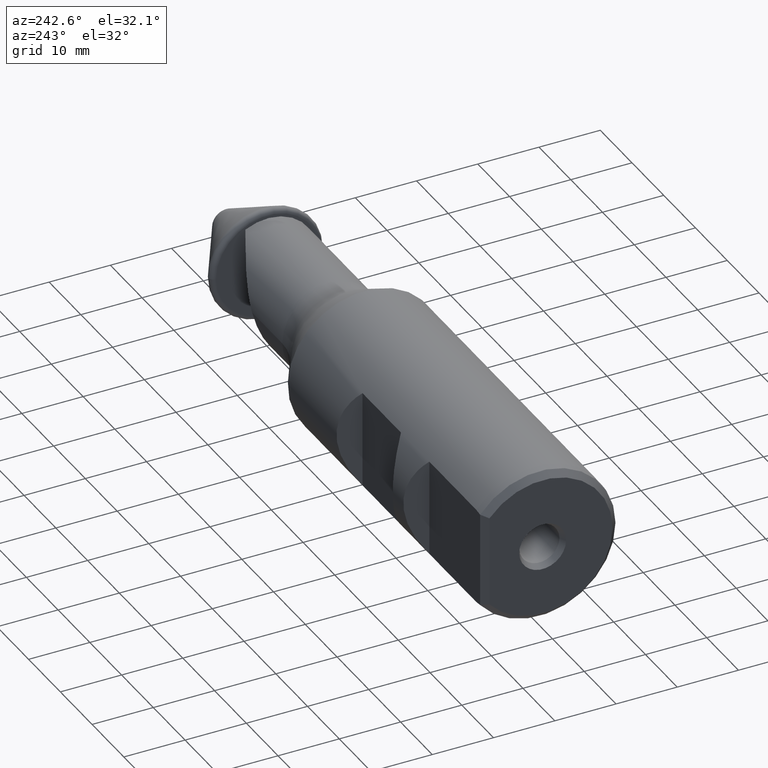
[diagram: clean part render]
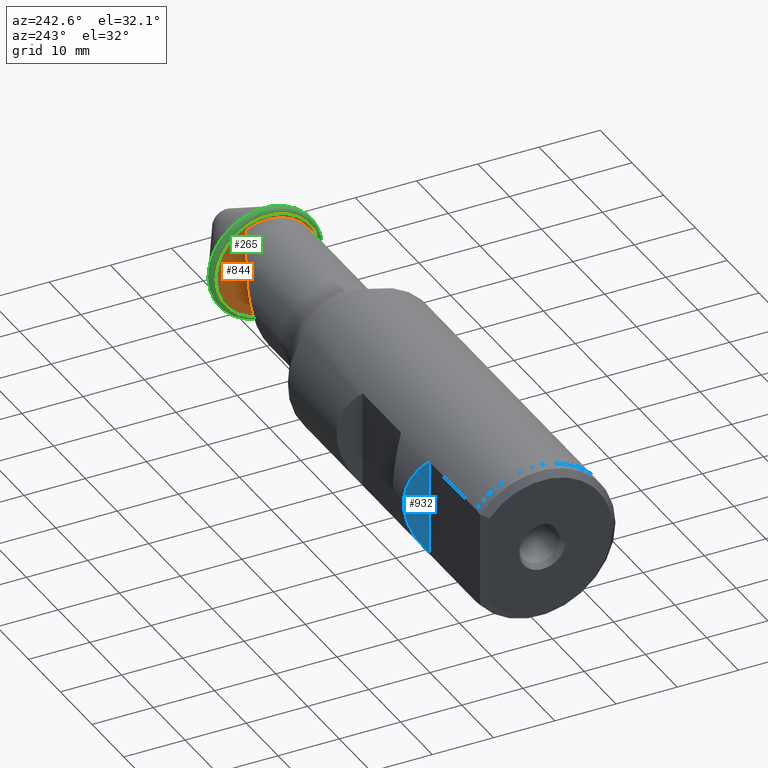
[diagram: same view with three faces highlighted in distinct colors, each labeled with its STEP entity id]
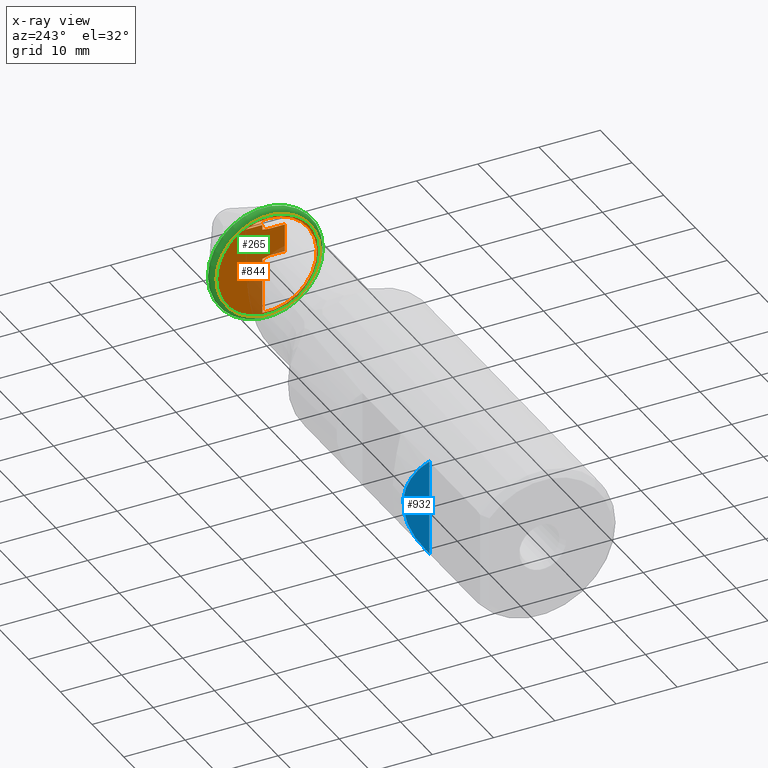
[diagram: x-ray of the same camera — body ghosted, the three highlighted faces saturated]
A machine part, auxiliary view with three faces highlighted in distinct colors.
The next image is the same camera in x-ray (body ghosted, the three faces saturated) — at least one of them is partly hidden behind the body in this view.
Their STEP definitions:

[orange] entity #844 — the highlighted planar face has unit normal (-1, -0, 0).
#12 = EDGE_LOOP ( 'NONE', ( #838 ) ) ;
#23 = EDGE_CURVE ( 'NONE', #689, #689, #156, .T. ) ;
#28 = CARTESIAN_POINT ( 'NONE',  ( -20.32288670554150700, -0.1350000000000016500, 6.141272524781870200 ) ) ;
#41 = VERTEX_POINT ( 'NONE', #28 ) ;
#47 = LINE ( 'NONE', #782, #883 ) ;
#54 = CARTESIAN_POINT ( 'NONE',  ( -20.32288670554150700, 0.3989106830094169600, 0.0000000000000000000 ) ) ;
#92 = ORIENTED_EDGE ( 'NONE', *, *, #1046, .F. ) ;
#94 = FACE_BOUND ( 'NONE', #315, .T. ) ;
#119 = CARTESIAN_POINT ( 'NONE',  ( -20.32288670554150700, -3.658987650883321000E-015, 0.0000000000000000000 ) ) ;
#127 = LINE ( 'NONE', #801, #1038 ) ;
#138 = EDGE_CURVE ( 'NONE', #166, #937, #242, .T. ) ;
#156 = CIRCLE ( 'NONE', #438, 8.479309060397749700 ) ;
#166 = VERTEX_POINT ( 'NONE', #1087 ) ;
#171 = FACE_OUTER_BOUND ( 'NONE', #12, .T. ) ;
#179 = VERTEX_POINT ( 'NONE', #919 ) ;
#218 = DIRECTION ( 'NONE',  ( 0.0000000000000000000, -1.000000000000000000, 0.0000000000000000000 ) ) ;
#235 = AXIS2_PLACEMENT_3D ( 'NONE', #54, #1072, #950 ) ;
#242 = CIRCLE ( 'NONE', #948, 8.000000000000003600 ) ;
#261 = LINE ( 'NONE', #1052, #661 ) ;
#277 = LINE ( 'NONE', #664, #508 ) ;
#285 = VERTEX_POINT ( 'NONE', #1050 ) ;
#286 = DIRECTION ( 'NONE',  ( 1.000000000000000000, 1.223561792411906800E-016, -0.0000000000000000000 ) ) ;
#287 = CARTESIAN_POINT ( 'NONE',  ( -20.32288670554150700, 8.479309060397746100, 0.0000000000000000000 ) ) ;
#290 = PLANE ( 'NONE',  #235 ) ;
#291 = DIRECTION ( 'NONE',  ( -1.223561792411907000E-016, 1.000000000000000000, 2.120187873891359400E-016 ) ) ;
#292 = CARTESIAN_POINT ( 'NONE',  ( -20.32288670554150700, -2.770000000000001800, 1.538418302221392200 ) ) ;
#315 = EDGE_LOOP ( 'NONE', ( #92, #991, #542, #824, #417, #453, #1113, #967, #429 ) ) ;
#373 = LINE ( 'NONE', #292, #845 ) ;
#403 = CARTESIAN_POINT ( 'NONE',  ( -20.32288670554150700, -0.1350000000000016500, 1.538418302221392900 ) ) ;
#404 = CARTESIAN_POINT ( 'NONE',  ( -20.32288670554150700, -2.770000000000001800, 6.141272524781872000 ) ) ;
#407 = B_SPLINE_CURVE_WITH_KNOTS ( 'NONE', 3,
 ( #516, #512, #509, #504 ),
 .UNSPECIFIED., .F., .F.,
 ( 4, 4 ),
 ( 0.004065363294481289800, 0.005111014878211050400 ),
 .UNSPECIFIED. ) ;
#416 = CARTESIAN_POINT ( 'NONE',  ( -20.32288670554150700, 0.8999999999999982500, 6.290407375788320500 ) ) ;
#417 = ORIENTED_EDGE ( 'NONE', *, *, #138, .T. ) ;
#429 = ORIENTED_EDGE ( 'NONE', *, *, #442, .T. ) ;
#437 = DIRECTION ( 'NONE',  ( 0.0000000000000000000, -1.000000000000000000, 0.0000000000000000000 ) ) ;
#438 = AXIS2_PLACEMENT_3D ( 'NONE', #817, #286, #904 ) ;
#442 = EDGE_CURVE ( 'NONE', #179, #285, #127, .T. ) ;
#453 = ORIENTED_EDGE ( 'NONE', *, *, #511, .T. ) ;
#504 = CARTESIAN_POINT ( 'NONE',  ( -20.32288670554150700, 0.8999999999999982500, 6.290407375788320500 ) ) ;
#508 = VECTOR ( 'NONE', #666, 1000.000000000000000 ) ;
#509 = CARTESIAN_POINT ( 'NONE',  ( -20.32288670554150700, 0.5549286646401250200, 6.241202958090901200 ) ) ;
#511 = EDGE_CURVE ( 'NONE', #937, #581, #277, .T. ) ;
#512 = CARTESIAN_POINT ( 'NONE',  ( -20.32288670554150700, 0.2099217332057552200, 6.191527559903185800 ) ) ;
#516 = CARTESIAN_POINT ( 'NONE',  ( -20.32288670554150700, -0.1350000000000016500, 6.141272524781870200 ) ) ;
#517 = CARTESIAN_POINT ( 'NONE',  ( -20.32288670554150700, 0.8999999999999982500, 1.290283785206652900 ) ) ;
#542 = ORIENTED_EDGE ( 'NONE', *, *, #931, .T. ) ;
#551 = CARTESIAN_POINT ( 'NONE',  ( -20.32288670554150700, 0.8999999999999982500, 7.101634922244807400 ) ) ;
#580 = VERTEX_POINT ( 'NONE', #551 ) ;
#581 = VERTEX_POINT ( 'NONE', #517 ) ;
#586 = EDGE_CURVE ( 'NONE', #41, #653, #407, .T. ) ;
#603 = LINE ( 'NONE', #903, #1026 ) ;
#653 = VERTEX_POINT ( 'NONE', #416 ) ;
#661 = VECTOR ( 'NONE', #1028, 1000.000000000000000 ) ;
#664 = CARTESIAN_POINT ( 'NONE',  ( -20.32288670554150700, 0.8999999999999982500, -10.39599999999999900 ) ) ;
#666 = DIRECTION ( 'NONE',  ( 0.0000000000000000000, 0.0000000000000000000, 1.000000000000000000 ) ) ;
#671 = VERTEX_POINT ( 'NONE', #403 ) ;
#689 = VERTEX_POINT ( 'NONE', #287 ) ;
#746 = DIRECTION ( 'NONE',  ( 1.000000000000000000, 1.223561792411906800E-016, -0.0000000000000000000 ) ) ;
#770 = DIRECTION ( 'NONE',  ( 1.189845174192937200E-016, -0.9724438778424857600, 0.2331370936738051700 ) ) ;
#774 = DIRECTION ( 'NONE',  ( 0.0000000000000000000, 0.0000000000000000000, 1.000000000000000000 ) ) ;
#782 = CARTESIAN_POINT ( 'NONE',  ( -20.32288670554150700, -0.06629613637461225000, 1.521946997856433700 ) ) ;
#801 = CARTESIAN_POINT ( 'NONE',  ( -20.32288670554150700, -2.770000000000001800, 4.081000000000000400 ) ) ;
#817 = CARTESIAN_POINT ( 'NONE',  ( -20.32288670554150700, -3.007050927400316000E-015, 0.0000000000000000000 ) ) ;
#824 = ORIENTED_EDGE ( 'NONE', *, *, #877, .T. ) ;
#838 = ORIENTED_EDGE ( 'NONE', *, *, #23, .F. ) ;
#844 = ADVANCED_FACE ( 'NONE', ( #171, #94 ), #290, .T. ) ;
#845 = VECTOR ( 'NONE', #291, 1000.000000000000000 ) ;
#857 = LINE ( 'NONE', #404, #1036 ) ;
#877 = EDGE_CURVE ( 'NONE', #580, #166, #261, .T. ) ;
#883 = VECTOR ( 'NONE', #770, 1000.000000000000000 ) ;
#900 = CARTESIAN_POINT ( 'NONE',  ( -20.32288670554150700, 0.8999999999999971400, -7.949213797602883600 ) ) ;
#903 = CARTESIAN_POINT ( 'NONE',  ( -20.32288670554150700, 0.8999999999999982500, -10.39599999999999900 ) ) ;
#904 = DIRECTION ( 'NONE',  ( 0.0000000000000000000, 1.000000000000000000, 0.0000000000000000000 ) ) ;
#919 = CARTESIAN_POINT ( 'NONE',  ( -20.32288670554150700, -2.770000000000001800, 1.538418302221392600 ) ) ;
#931 = EDGE_CURVE ( 'NONE', #653, #580, #603, .T. ) ;
#937 = VERTEX_POINT ( 'NONE', #900 ) ;
#948 = AXIS2_PLACEMENT_3D ( 'NONE', #119, #746, #218 ) ;
#950 = DIRECTION ( 'NONE',  ( 1.223561792411906800E-016, -1.000000000000000000, 0.0000000000000000000 ) ) ;
#957 = EDGE_CURVE ( 'NONE', #581, #671, #47, .T. ) ;
#959 = DIRECTION ( 'NONE',  ( 0.0000000000000000000, 0.0000000000000000000, 1.000000000000000000 ) ) ;
#967 = ORIENTED_EDGE ( 'NONE', *, *, #1097, .F. ) ;
#991 = ORIENTED_EDGE ( 'NONE', *, *, #586, .T. ) ;
#1026 = VECTOR ( 'NONE', #959, 1000.000000000000000 ) ;
#1028 = DIRECTION ( 'NONE',  ( -0.0000000000000000000, 1.000000000000000000, -0.0000000000000000000 ) ) ;
#1036 = VECTOR ( 'NONE', #437, 1000.000000000000000 ) ;
#1038 = VECTOR ( 'NONE', #774, 1000.000000000000000 ) ;
#1046 = EDGE_CURVE ( 'NONE', #41, #285, #857, .T. ) ;
#1050 = CARTESIAN_POINT ( 'NONE',  ( -20.32288670554150700, -2.770000000000001800, 6.141272524781872000 ) ) ;
#1052 = CARTESIAN_POINT ( 'NONE',  ( -20.32288670554150700, 12.59999999999998900, 7.101634922244807400 ) ) ;
#1072 = DIRECTION ( 'NONE',  ( -1.000000000000000000, -1.223561792411906800E-016, 0.0000000000000000000 ) ) ;
#1087 = CARTESIAN_POINT ( 'NONE',  ( -20.32288670554150700, 3.683311204765778300, 7.101634922244806500 ) ) ;
#1097 = EDGE_CURVE ( 'NONE', #179, #671, #373, .T. ) ;
#1113 = ORIENTED_EDGE ( 'NONE', *, *, #957, .T. ) ;

[blue] entity #932 — the highlighted planar face has unit normal (-0.7071, 0.7071, 0).
#7 = CARTESIAN_POINT ( 'NONE',  ( -86.00282131661441600, 13.59717868338557900, -3.089404912919607500 ) ) ;
#50 = CARTESIAN_POINT ( 'NONE',  ( -89.90000000000000600, 9.699999999999990400, 7.884161337770824400 ) ) ;
#163 = EDGE_CURVE ( 'NONE', #698, #1085, #170, .T. ) ;
#170 =( BOUNDED_CURVE ( )  B_SPLINE_CURVE ( 3, ( #306, #7, #574, #50 ),
 .UNSPECIFIED., .F., .T. ) 
 B_SPLINE_CURVE_WITH_KNOTS ( ( 4, 4 ),
 ( 5.600687989903613100, 6.965682624455559400 ),
 .UNSPECIFIED. ) 
 CURVE ( )  GEOMETRIC_REPRESENTATION_ITEM ( )  RATIONAL_B_SPLINE_CURVE ( ( 1.000000000000000000, 0.8506666666666660200, 0.8506666666666660200, 1.000000000000000000 ) ) 
 REPRESENTATION_ITEM ( '' )  );
#194 = ORIENTED_EDGE ( 'NONE', *, *, #513, .F. ) ;
#306 = CARTESIAN_POINT ( 'NONE',  ( -89.90000000000000600, 9.699999999999990400, -7.884161337770820800 ) ) ;
#342 = ORIENTED_EDGE ( 'NONE', *, *, #163, .F. ) ;
#371 = CARTESIAN_POINT ( 'NONE',  ( -89.90000000000000600, 9.699999999999990400, 7.884161337770824400 ) ) ;
#419 = CARTESIAN_POINT ( 'NONE',  ( -89.90000000000000600, 9.699999999999990400, -7.884161337770820800 ) ) ;
#441 = EDGE_LOOP ( 'NONE', ( #342, #194 ) ) ;
#478 = FACE_OUTER_BOUND ( 'NONE', #441, .T. ) ;
#513 = EDGE_CURVE ( 'NONE', #1085, #698, #742, .T. ) ;
#574 = CARTESIAN_POINT ( 'NONE',  ( -86.00282131661444400, 13.59717868338557900, 3.089404912919605300 ) ) ;
#640 = DIRECTION ( 'NONE',  ( 0.0000000000000000000, 0.0000000000000000000, -1.000000000000000000 ) ) ;
#648 = CARTESIAN_POINT ( 'NONE',  ( -89.90000000000000600, 9.699999999999990400, 10.00000000000000000 ) ) ;
#698 = VERTEX_POINT ( 'NONE', #419 ) ;
#742 = LINE ( 'NONE', #648, #772 ) ;
#772 = VECTOR ( 'NONE', #640, 1000.000000000000000 ) ;
#872 = DIRECTION ( 'NONE',  ( -0.7071067811865458000, -0.7071067811865492400, 0.0000000000000000000 ) ) ;
#874 = DIRECTION ( 'NONE',  ( -0.7071067811865492400, 0.7071067811865458000, 0.0000000000000000000 ) ) ;
#889 = CARTESIAN_POINT ( 'NONE',  ( -87.00000000000002800, 12.59999999999998900, 10.00000000000000000 ) ) ;
#894 = PLANE ( 'NONE',  #983 ) ;
#932 = ADVANCED_FACE ( 'NONE', ( #478 ), #894, .T. ) ;
#983 = AXIS2_PLACEMENT_3D ( 'NONE', #889, #874, #872 ) ;
#1085 = VERTEX_POINT ( 'NONE', #371 ) ;

[green] entity #265 — the highlighted toroidal blend (fillet) surface has major radius 8.4793 mm and minor (blend) radius 0.8 mm.
#23 = EDGE_CURVE ( 'NONE', #689, #689, #156, .T. ) ;
#57 = EDGE_LOOP ( 'NONE', ( #557 ) ) ;
#118 = VERTEX_POINT ( 'NONE', #255 ) ;
#156 = CIRCLE ( 'NONE', #438, 8.479309060397749700 ) ;
#255 = CARTESIAN_POINT ( 'NONE',  ( -19.12288670554151400, 9.172129383425309300, 0.0000000000000000000 ) ) ;
#265 = ADVANCED_FACE ( 'NONE', ( #849, #324 ), #336, .T. ) ;
#286 = DIRECTION ( 'NONE',  ( 1.000000000000000000, 1.223561792411906800E-016, -0.0000000000000000000 ) ) ;
#287 = CARTESIAN_POINT ( 'NONE',  ( -20.32288670554150700, 8.479309060397746100, 0.0000000000000000000 ) ) ;
#324 = FACE_OUTER_BOUND ( 'NONE', #1112, .T. ) ;
#331 = EDGE_CURVE ( 'NONE', #118, #118, #797, .T. ) ;
#336 = TOROIDAL_SURFACE ( 'NONE', #888, 8.479309060397760300, 0.7999999999999986000 ) ;
#438 = AXIS2_PLACEMENT_3D ( 'NONE', #817, #286, #904 ) ;
#557 = ORIENTED_EDGE ( 'NONE', *, *, #23, .T. ) ;
#689 = VERTEX_POINT ( 'NONE', #287 ) ;
#707 = ORIENTED_EDGE ( 'NONE', *, *, #331, .F. ) ;
#797 = CIRCLE ( 'NONE', #834, 9.172129383425312800 ) ;
#817 = CARTESIAN_POINT ( 'NONE',  ( -20.32288670554150700, -3.007050927400316000E-015, 0.0000000000000000000 ) ) ;
#834 = AXIS2_PLACEMENT_3D ( 'NONE', #921, #915, #909 ) ;
#849 = FACE_OUTER_BOUND ( 'NONE', #57, .T. ) ;
#888 = AXIS2_PLACEMENT_3D ( 'NONE', #934, #1108, #1107 ) ;
#904 = DIRECTION ( 'NONE',  ( 0.0000000000000000000, 1.000000000000000000, 0.0000000000000000000 ) ) ;
#909 = DIRECTION ( 'NONE',  ( 0.0000000000000000000, 1.000000000000000000, 0.0000000000000000000 ) ) ;
#915 = DIRECTION ( 'NONE',  ( 1.000000000000000000, 1.223561792411906800E-016, -0.0000000000000000000 ) ) ;
#921 = CARTESIAN_POINT ( 'NONE',  ( -19.12288670554151400, -2.860223512310887900E-015, 0.0000000000000000000 ) ) ;
#934 = CARTESIAN_POINT ( 'NONE',  ( -19.52288670554150600, -3.469446951953614200E-015, 0.0000000000000000000 ) ) ;
#1107 = DIRECTION ( 'NONE',  ( -1.223561792411906800E-016, 1.000000000000000000, 0.0000000000000000000 ) ) ;
#1108 = DIRECTION ( 'NONE',  ( 1.000000000000000000, 1.223561792411906800E-016, -0.0000000000000000000 ) ) ;
#1112 = EDGE_LOOP ( 'NONE', ( #707 ) ) ;